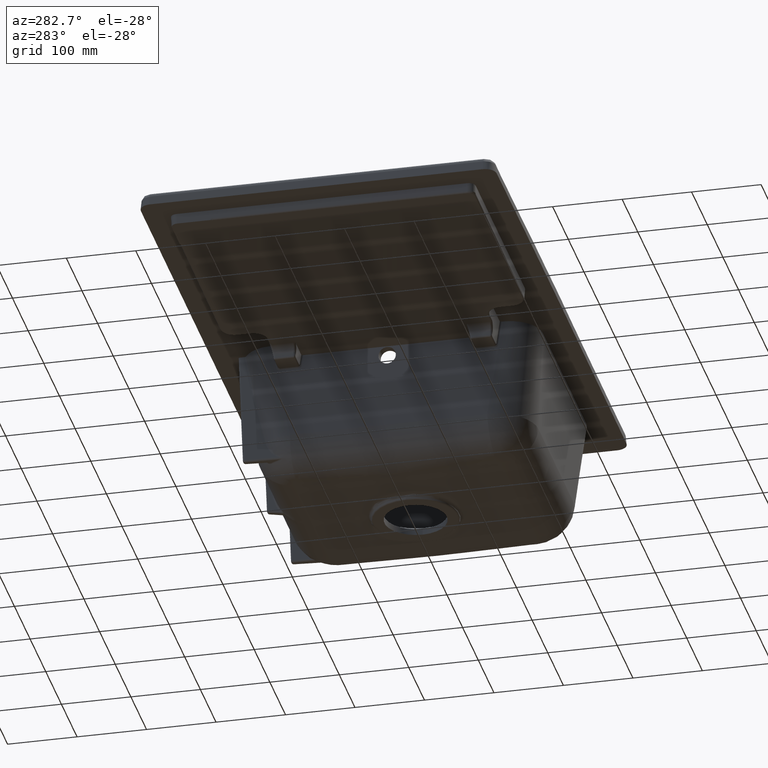
[diagram: clean part render]
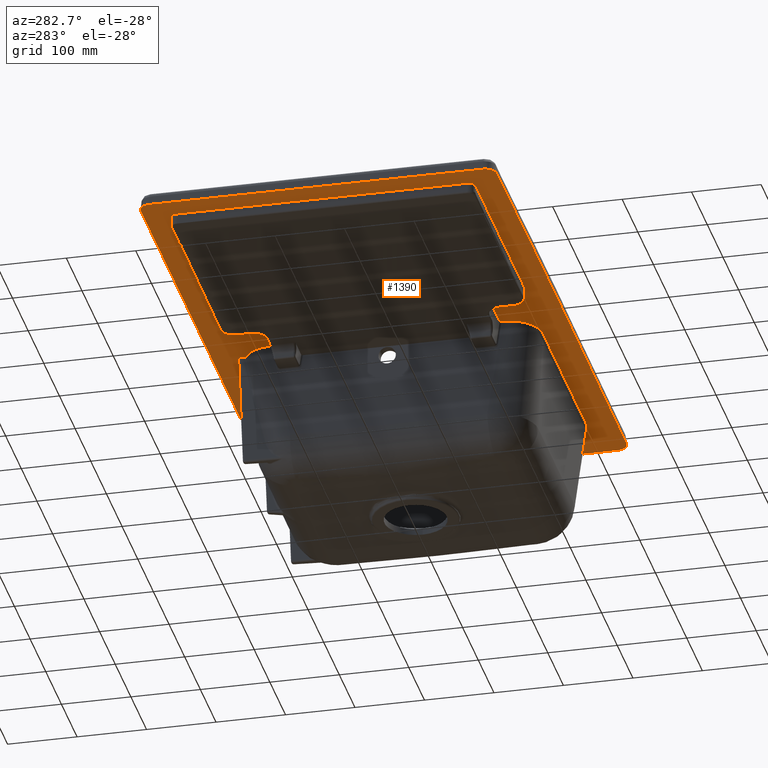
[diagram: same view with one face highlighted and labeled with its STEP entity id]
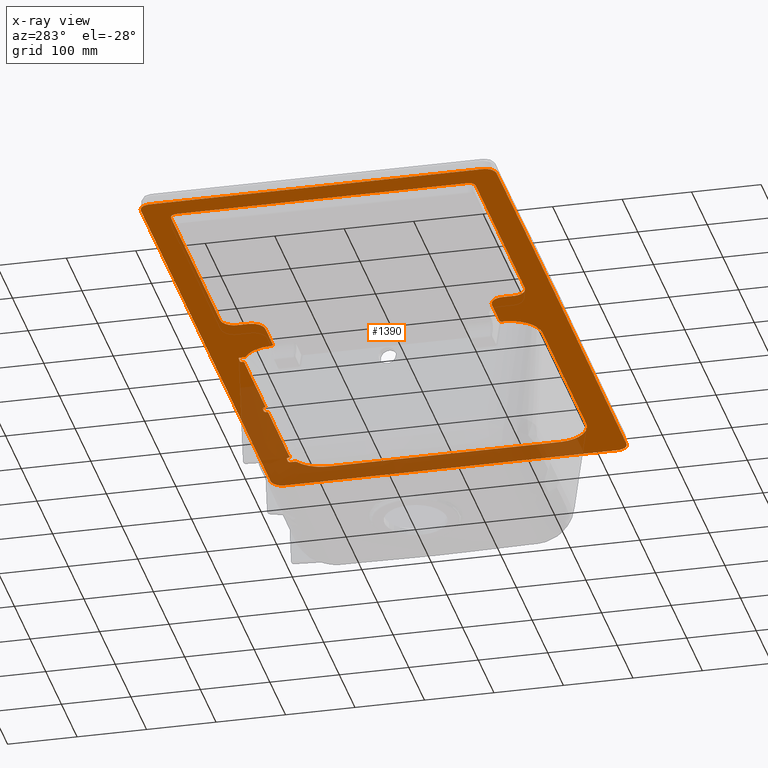
[diagram: x-ray of the same camera — body ghosted, the highlighted face saturated]
A machine part, auxiliary view. The second image highlights one B-rep face of the part: STEP entity #1390.
The next image is the same camera in x-ray: the body ghosted, the highlighted face saturated — about 26% of this face is hidden behind the body in this view.
In plain terms, the highlighted face is a freeform B-spline surface patch.
Its self-contained STEP definition (entity closure, byte-faithful):
#437=B_SPLINE_SURFACE_WITH_KNOTS('',3,3,((#20164,#20165,#20166,#20167),
(#20168,#20169,#20170,#20171),(#20172,#20173,#20174,#20175),(#20176,#20177,
#20178,#20179)),.UNSPECIFIED.,.F.,.F.,.F.,(4,4),(4,4),(0.,1.),(0.,1.),
 .UNSPECIFIED.);
#984=B_SPLINE_CURVE_WITH_KNOTS('',3,(#18174,#18175,#18176,#18177,#18178,
#18179,#18180,#18181,#18182,#18183),.UNSPECIFIED.,.F.,.F.,(4,2,2,2,4),(0.,
0.249999999999998,0.499999999999995,0.749999999999998,1.),.UNSPECIFIED.);
#1020=B_SPLINE_CURVE_WITH_KNOTS('',3,(#18917,#18918,#18919,#18920),
 .UNSPECIFIED.,.F.,.F.,(4,4),(0.,1.),.UNSPECIFIED.);
#1025=B_SPLINE_CURVE_WITH_KNOTS('',3,(#18976,#18977,#18978,#18979),
 .UNSPECIFIED.,.F.,.F.,(4,4),(0.,1.),.UNSPECIFIED.);
#1043=B_SPLINE_CURVE_WITH_KNOTS('',3,(#19394,#19395,#19396,#19397,#19398,
#19399,#19400,#19401,#19402,#19403),.UNSPECIFIED.,.F.,.F.,(4,2,2,2,4),(0.,
0.25,0.5,0.75,1.),.UNSPECIFIED.);
#1046=B_SPLINE_CURVE_WITH_KNOTS('',3,(#19473,#19474,#19475,#19476),
 .UNSPECIFIED.,.F.,.F.,(4,4),(0.,1.),.UNSPECIFIED.);
#1050=B_SPLINE_CURVE_WITH_KNOTS('',3,(#19551,#19552,#19553,#19554),
 .UNSPECIFIED.,.F.,.F.,(4,4),(0.,1.),.UNSPECIFIED.);
#1052=B_SPLINE_CURVE_WITH_KNOTS('',3,(#19590,#19591,#19592,#19593),
 .UNSPECIFIED.,.F.,.F.,(4,4),(0.,1.),.UNSPECIFIED.);
#1054=B_SPLINE_CURVE_WITH_KNOTS('',3,(#19638,#19639,#19640,#19641,#19642,
#19643,#19644,#19645,#19646,#19647),.UNSPECIFIED.,.F.,.F.,(4,2,2,2,4),(0.,
0.25,0.5,0.75,1.),.UNSPECIFIED.);
#1055=B_SPLINE_CURVE_WITH_KNOTS('',3,(#19673,#19674,#19675,#19676,#19677,
#19678,#19679,#19680,#19681,#19682),.UNSPECIFIED.,.F.,.F.,(4,2,2,2,4),(0.,
0.250000000000002,0.500000000000005,0.750000000000002,1.),.UNSPECIFIED.);
#1056=B_SPLINE_CURVE_WITH_KNOTS('',3,(#19704,#19705,#19706,#19707),
 .UNSPECIFIED.,.F.,.F.,(4,4),(0.,1.),.UNSPECIFIED.);
#1057=B_SPLINE_CURVE_WITH_KNOTS('',3,(#19709,#19710,#19711,#19712),
 .UNSPECIFIED.,.F.,.F.,(4,4),(0.,1.),.UNSPECIFIED.);
#1058=B_SPLINE_CURVE_WITH_KNOTS('',3,(#19715,#19716,#19717,#19718,#19719,
#19720),.UNSPECIFIED.,.F.,.F.,(4,2,4),(0.,0.5,1.),.UNSPECIFIED.);
#1059=B_SPLINE_CURVE_WITH_KNOTS('',3,(#19722,#19723,#19724,#19725,#19726,
#19727,#19728,#19729,#19730,#19731,#19732,#19733,#19734,#19735,#19736,#19737),
 .UNSPECIFIED.,.F.,.F.,(4,2,2,2,2,2,2,4),(0.,0.249999999999979,0.499999999999959,
0.624999999999949,0.687499999999951,0.749999999999952,0.874999999999976,
1.),.UNSPECIFIED.);
#1060=B_SPLINE_CURVE_WITH_KNOTS('',3,(#19739,#19740,#19741,#19742),
 .UNSPECIFIED.,.F.,.F.,(4,4),(0.,1.),.UNSPECIFIED.);
#1061=B_SPLINE_CURVE_WITH_KNOTS('',3,(#19744,#19745,#19746,#19747),
 .UNSPECIFIED.,.F.,.F.,(4,4),(0.,1.),.UNSPECIFIED.);
#1062=B_SPLINE_CURVE_WITH_KNOTS('',3,(#19749,#19750,#19751,#19752,#19753,
#19754,#19755,#19756,#19757,#19758),.UNSPECIFIED.,.F.,.F.,(4,2,2,2,4),(0.,
0.125,0.25,0.5,1.),.UNSPECIFIED.);
#1063=B_SPLINE_CURVE_WITH_KNOTS('',3,(#19760,#19761,#19762,#19763,#19764,
#19765),.UNSPECIFIED.,.F.,.F.,(4,2,4),(0.,0.5,1.),.UNSPECIFIED.);
#1064=B_SPLINE_CURVE_WITH_KNOTS('',3,(#19767,#19768,#19769,#19770),
 .UNSPECIFIED.,.F.,.F.,(4,4),(0.,1.),.UNSPECIFIED.);
#1065=B_SPLINE_CURVE_WITH_KNOTS('',3,(#19772,#19773,#19774,#19775,#19776,
#19777),.UNSPECIFIED.,.F.,.F.,(4,2,4),(0.,0.5,1.),.UNSPECIFIED.);
#1066=B_SPLINE_CURVE_WITH_KNOTS('',3,(#19779,#19780,#19781,#19782,#19783,
#19784,#19785,#19786),.UNSPECIFIED.,.F.,.F.,(4,2,2,4),(0.,0.5,0.75,1.),
 .UNSPECIFIED.);
#1067=B_SPLINE_CURVE_WITH_KNOTS('',3,(#19788,#19789,#19790,#19791),
 .UNSPECIFIED.,.F.,.F.,(4,4),(0.,1.),.UNSPECIFIED.);
#1068=B_SPLINE_CURVE_WITH_KNOTS('',3,(#19793,#19794,#19795,#19796),
 .UNSPECIFIED.,.F.,.F.,(4,4),(0.,1.),.UNSPECIFIED.);
#1069=B_SPLINE_CURVE_WITH_KNOTS('',3,(#19798,#19799,#19800,#19801,#19802,
#19803,#19804,#19805,#19806,#19807,#19808,#19809,#19810,#19811,#19812,#19813),
 .UNSPECIFIED.,.F.,.F.,(4,2,2,2,2,2,2,4),(0.,0.124999999999995,0.249999999999991,
0.312499999999983,0.374999999999976,0.499999999999976,0.749999999999988,
1.),.UNSPECIFIED.);
#1070=B_SPLINE_CURVE_WITH_KNOTS('',3,(#19815,#19816,#19817,#19818,#19819,
#19820),.UNSPECIFIED.,.F.,.F.,(4,2,4),(0.,0.5,1.),.UNSPECIFIED.);
#1071=B_SPLINE_CURVE_WITH_KNOTS('',3,(#19822,#19823,#19824,#19825),
 .UNSPECIFIED.,.F.,.F.,(4,4),(0.,1.),.UNSPECIFIED.);
#1072=B_SPLINE_CURVE_WITH_KNOTS('',3,(#19827,#19828,#19829,#19830,#19831,
#19832),.UNSPECIFIED.,.F.,.F.,(4,2,4),(0.,0.5,1.),.UNSPECIFIED.);
#1073=B_SPLINE_CURVE_WITH_KNOTS('',3,(#19834,#19835,#19836,#19837),
 .UNSPECIFIED.,.F.,.F.,(4,4),(0.,1.),.UNSPECIFIED.);
#1074=B_SPLINE_CURVE_WITH_KNOTS('',3,(#19839,#19840,#19841,#19842),
 .UNSPECIFIED.,.F.,.F.,(4,4),(0.,1.),.UNSPECIFIED.);
#1075=B_SPLINE_CURVE_WITH_KNOTS('',3,(#19844,#19845,#19846,#19847,#19848,
#19849,#19850,#19851,#19852,#19853,#19854,#19855,#19856,#19857,#19858,#19859,
#19860,#19861),.UNSPECIFIED.,.F.,.F.,(4,2,2,2,2,2,2,2,4),(0.,0.250000000000003,
0.281250000000003,0.312500000000004,0.375000000000003,0.500000000000002,
0.625000000000002,0.750000000000001,1.),.UNSPECIFIED.);
#1076=B_SPLINE_CURVE_WITH_KNOTS('',3,(#19863,#19864,#19865,#19866),
 .UNSPECIFIED.,.F.,.F.,(4,4),(0.,1.),.UNSPECIFIED.);
#1077=B_SPLINE_CURVE_WITH_KNOTS('',3,(#19868,#19869,#19870,#19871,#19872,
#19873,#19874,#19875),.UNSPECIFIED.,.F.,.F.,(4,2,2,4),(0.,0.25,0.5,1.),
 .UNSPECIFIED.);
#1078=B_SPLINE_CURVE_WITH_KNOTS('',3,(#19877,#19878,#19879,#19880),
 .UNSPECIFIED.,.F.,.F.,(4,4),(0.,1.),.UNSPECIFIED.);
#1079=B_SPLINE_CURVE_WITH_KNOTS('',3,(#19882,#19883,#19884,#19885,#19886,
#19887,#19888,#19889,#19890,#19891,#19892,#19893,#19894,#19895,#19896,#19897,
#19898,#19899),.UNSPECIFIED.,.F.,.F.,(4,2,2,2,2,2,2,2,4),(0.,0.125000000000002,
0.187500000000004,0.250000000000005,0.500000000000003,0.625,0.687499999999999,
0.749999999999998,1.),.UNSPECIFIED.);
#1080=B_SPLINE_CURVE_WITH_KNOTS('',3,(#19901,#19902,#19903,#19904),
 .UNSPECIFIED.,.F.,.F.,(4,4),(0.,1.),.UNSPECIFIED.);
#1081=B_SPLINE_CURVE_WITH_KNOTS('',3,(#19906,#19907,#19908,#19909,#19910,
#19911,#19912,#19913,#19914,#19915,#19916,#19917,#19918,#19919,#19920,#19921,
#19922,#19923,#19924,#19925,#19926,#19927,#19928,#19929),.UNSPECIFIED.,
 .F.,.F.,(4,2,2,2,2,2,2,2,2,2,2,4),(0.,0.250000000000022,0.265625000000022,
0.281250000000023,0.312500000000023,0.375000000000024,0.500000000000025,
0.531250000000024,0.562500000000023,0.62500000000002,0.750000000000012,
1.),.UNSPECIFIED.);
#1082=B_SPLINE_CURVE_WITH_KNOTS('',3,(#19931,#19932,#19933,#19934),
 .UNSPECIFIED.,.F.,.F.,(4,4),(0.,1.),.UNSPECIFIED.);
#1083=B_SPLINE_CURVE_WITH_KNOTS('',3,(#19936,#19937,#19938,#19939,#19940,
#19941,#19942,#19943,#19944,#19945,#19946,#19947,#19948,#19949,#19950,#19951,
#19952,#19953),.UNSPECIFIED.,.F.,.F.,(4,2,2,2,2,2,2,2,4),(0.,0.499999999999942,
0.562499999999937,0.624999999999931,0.749999999999918,0.781249999999918,
0.812499999999918,0.874999999999939,1.),.UNSPECIFIED.);
#1084=B_SPLINE_CURVE_WITH_KNOTS('',3,(#19955,#19956,#19957,#19958),
 .UNSPECIFIED.,.F.,.F.,(4,4),(0.,1.),.UNSPECIFIED.);
#1085=B_SPLINE_CURVE_WITH_KNOTS('',3,(#19960,#19961,#19962,#19963),
 .UNSPECIFIED.,.F.,.F.,(4,4),(0.,1.),.UNSPECIFIED.);
#1086=B_SPLINE_CURVE_WITH_KNOTS('',3,(#19965,#19966,#19967,#19968,#19969,
#19970,#19971,#19972,#19973,#19974,#19975,#19976,#19977,#19978,#19979,#19980,
#19981,#19982,#19983,#19984),.UNSPECIFIED.,.F.,.F.,(4,2,2,2,2,2,2,2,2,4),
(0.,0.250000000000022,0.281250000000009,0.312499999999997,0.374999999999993,
0.499999999999969,0.562499999999968,0.624999999999966,0.749999999999975,
1.),.UNSPECIFIED.);
#1087=B_SPLINE_CURVE_WITH_KNOTS('',3,(#19986,#19987,#19988,#19989),
 .UNSPECIFIED.,.F.,.F.,(4,4),(0.,1.),.UNSPECIFIED.);
#1088=B_SPLINE_CURVE_WITH_KNOTS('',3,(#19991,#19992,#19993,#19994,#19995,
#19996,#19997,#19998,#19999,#20000,#20001,#20002,#20003,#20004,#20005,#20006,
#20007,#20008,#20009,#20010,#20011,#20012),.UNSPECIFIED.,.F.,.F.,(4,2,2,
2,2,2,2,2,2,2,4),(0.,0.499999999999999,0.531249999999998,0.562499999999997,
0.624999999999993,0.749999999999983,0.765624999999986,0.781249999999989,
0.812499999999991,0.874999999999994,1.),.UNSPECIFIED.);
#1089=B_SPLINE_CURVE_WITH_KNOTS('',3,(#20014,#20015,#20016,#20017),
 .UNSPECIFIED.,.F.,.F.,(4,4),(0.,1.),.UNSPECIFIED.);
#1090=B_SPLINE_CURVE_WITH_KNOTS('',3,(#20019,#20020,#20021,#20022,#20023,
#20024,#20025,#20026,#20027,#20028,#20029,#20030,#20031,#20032,#20033,#20034,
#20035,#20036),.UNSPECIFIED.,.F.,.F.,(4,2,2,2,2,2,2,2,4),(0.,0.124999999999996,
0.187499999999996,0.249999999999996,0.499999999999995,0.624999999999993,
0.687499999999994,0.749999999999995,1.),.UNSPECIFIED.);
#1091=B_SPLINE_CURVE_WITH_KNOTS('',3,(#20038,#20039,#20040,#20041),
 .UNSPECIFIED.,.F.,.F.,(4,4),(0.,1.),.UNSPECIFIED.);
#1092=B_SPLINE_CURVE_WITH_KNOTS('',3,(#20043,#20044,#20045,#20046,#20047,
#20048,#20049,#20050),.UNSPECIFIED.,.F.,.F.,(4,2,2,4),(0.,0.25,0.5,1.),
 .UNSPECIFIED.);
#1093=B_SPLINE_CURVE_WITH_KNOTS('',3,(#20052,#20053,#20054,#20055),
 .UNSPECIFIED.,.F.,.F.,(4,4),(0.,1.),.UNSPECIFIED.);
#1094=B_SPLINE_CURVE_WITH_KNOTS('',3,(#20057,#20058,#20059,#20060,#20061,
#20062,#20063,#20064,#20065,#20066,#20067,#20068,#20069,#20070,#20071,#20072,
#20073,#20074,#20075,#20076,#20077,#20078,#20079,#20080,#20081,#20082),
 .UNSPECIFIED.,.F.,.F.,(4,2,2,2,2,2,2,2,2,2,2,2,4),(0.,0.124999999999998,
0.187499999999997,0.218749999999997,0.234374999999997,0.249999999999997,
0.499999999999996,0.624999999999997,0.687499999999997,0.718749999999996,
0.734374999999996,0.749999999999996,1.),.UNSPECIFIED.);
#1095=B_SPLINE_CURVE_WITH_KNOTS('',3,(#20084,#20085,#20086,#20087),
 .UNSPECIFIED.,.F.,.F.,(4,4),(0.,1.),.UNSPECIFIED.);
#1096=B_SPLINE_CURVE_WITH_KNOTS('',3,(#20089,#20090,#20091,#20092,#20093,
#20094,#20095,#20096,#20097,#20098,#20099,#20100,#20101,#20102,#20103,#20104,
#20105,#20106,#20107,#20108,#20109,#20110,#20111,#20112,#20113,#20114),
 .UNSPECIFIED.,.F.,.F.,(4,2,2,2,2,2,2,2,2,2,2,2,4),(0.,0.125000000000001,
0.187500000000002,0.218750000000002,0.234375000000002,0.250000000000003,
0.500000000000005,0.625000000000006,0.687500000000006,0.718750000000006,
0.734375000000006,0.750000000000006,1.),.UNSPECIFIED.);
#1097=B_SPLINE_CURVE_WITH_KNOTS('',3,(#20116,#20117,#20118,#20119),
 .UNSPECIFIED.,.F.,.F.,(4,4),(0.,1.),.UNSPECIFIED.);
#1098=B_SPLINE_CURVE_WITH_KNOTS('',3,(#20121,#20122,#20123,#20124,#20125,
#20126,#20127,#20128,#20129,#20130,#20131,#20132,#20133,#20134,#20135,#20136,
#20137,#20138,#20139,#20140),.UNSPECIFIED.,.F.,.F.,(4,2,2,2,2,2,2,2,2,4),
(0.,0.250000000000002,0.500000000000003,0.625000000000004,0.687500000000004,
0.750000000000004,0.812500000000005,0.843750000000004,0.875000000000003,
1.),.UNSPECIFIED.);
#1099=B_SPLINE_CURVE_WITH_KNOTS('',3,(#20142,#20143,#20144,#20145,#20146,
#20147,#20148,#20149,#20150,#20151),.UNSPECIFIED.,.F.,.F.,(4,2,2,2,4),(0.,
0.124999999999998,0.249999999999997,0.499999999999993,1.),.UNSPECIFIED.);
#1100=B_SPLINE_CURVE_WITH_KNOTS('',3,(#20153,#20154,#20155,#20156),
 .UNSPECIFIED.,.F.,.F.,(4,4),(0.,1.),.UNSPECIFIED.);
#1101=B_SPLINE_CURVE_WITH_KNOTS('',3,(#20158,#20159,#20160,#20161,#20162,
#20163),.UNSPECIFIED.,.F.,.F.,(4,2,4),(0.,0.5,1.),.UNSPECIFIED.);
#1390=ADVANCED_FACE('',(#1705,#1706),#437,.T.);
#1705=FACE_BOUND('',#1871,.T.);
#1706=FACE_BOUND('',#1872,.T.);
#1871=EDGE_LOOP('',(#2705,#2706,#2707,#2708,#2709,#2710,#2711,#2712,#2713,
#2714,#2715,#2716,#2717,#2718,#2719,#2720,#2721,#2722,#2723,#2724,#2725,
#2726,#2727,#2728,#2729,#2730,#2731,#2732,#2733,#2734,#2735,#2736,#2737,
#2738,#2739,#2740,#2741,#2742,#2743,#2744,#2745,#2746,#2747,#2748,#2749));
#1872=EDGE_LOOP('',(#2750,#2751,#2752,#2753,#2754,#2755,#2756,#2757,#2758,
#2759));
#2705=ORIENTED_EDGE('',*,*,#4212,.F.);
#2706=ORIENTED_EDGE('',*,*,#4213,.F.);
#2707=ORIENTED_EDGE('',*,*,#4214,.F.);
#2708=ORIENTED_EDGE('',*,*,#4215,.F.);
#2709=ORIENTED_EDGE('',*,*,#4216,.F.);
#2710=ORIENTED_EDGE('',*,*,#4217,.F.);
#2711=ORIENTED_EDGE('',*,*,#4218,.F.);
#2712=ORIENTED_EDGE('',*,*,#4219,.F.);
#2713=ORIENTED_EDGE('',*,*,#4220,.F.);
#2714=ORIENTED_EDGE('',*,*,#4221,.F.);
#2715=ORIENTED_EDGE('',*,*,#4222,.F.);
#2716=ORIENTED_EDGE('',*,*,#4223,.F.);
#2717=ORIENTED_EDGE('',*,*,#4224,.F.);
#2718=ORIENTED_EDGE('',*,*,#4225,.F.);
#2719=ORIENTED_EDGE('',*,*,#4226,.F.);
#2720=ORIENTED_EDGE('',*,*,#4227,.F.);
#2721=ORIENTED_EDGE('',*,*,#4228,.F.);
#2722=ORIENTED_EDGE('',*,*,#4229,.F.);
#2723=ORIENTED_EDGE('',*,*,#4230,.F.);
#2724=ORIENTED_EDGE('',*,*,#4231,.F.);
#2725=ORIENTED_EDGE('',*,*,#4232,.F.);
#2726=ORIENTED_EDGE('',*,*,#4233,.F.);
#2727=ORIENTED_EDGE('',*,*,#4234,.F.);
#2728=ORIENTED_EDGE('',*,*,#4235,.F.);
#2729=ORIENTED_EDGE('',*,*,#4236,.F.);
#2730=ORIENTED_EDGE('',*,*,#4237,.F.);
#2731=ORIENTED_EDGE('',*,*,#4238,.F.);
#2732=ORIENTED_EDGE('',*,*,#4239,.F.);
#2733=ORIENTED_EDGE('',*,*,#4240,.F.);
#2734=ORIENTED_EDGE('',*,*,#4241,.F.);
#2735=ORIENTED_EDGE('',*,*,#4242,.F.);
#2736=ORIENTED_EDGE('',*,*,#4243,.F.);
#2737=ORIENTED_EDGE('',*,*,#4244,.F.);
#2738=ORIENTED_EDGE('',*,*,#4245,.F.);
#2739=ORIENTED_EDGE('',*,*,#4246,.F.);
#2740=ORIENTED_EDGE('',*,*,#4247,.F.);
#2741=ORIENTED_EDGE('',*,*,#4248,.F.);
#2742=ORIENTED_EDGE('',*,*,#4249,.F.);
#2743=ORIENTED_EDGE('',*,*,#4250,.F.);
#2744=ORIENTED_EDGE('',*,*,#4251,.F.);
#2745=ORIENTED_EDGE('',*,*,#4252,.F.);
#2746=ORIENTED_EDGE('',*,*,#4253,.F.);
#2747=ORIENTED_EDGE('',*,*,#4254,.F.);
#2748=ORIENTED_EDGE('',*,*,#4255,.F.);
#2749=ORIENTED_EDGE('',*,*,#4256,.F.);
#2750=ORIENTED_EDGE('',*,*,#4198,.T.);
#2751=ORIENTED_EDGE('',*,*,#4185,.T.);
#2752=ORIENTED_EDGE('',*,*,#4155,.T.);
#2753=ORIENTED_EDGE('',*,*,#4088,.T.);
#2754=ORIENTED_EDGE('',*,*,#4166,.T.);
#2755=ORIENTED_EDGE('',*,*,#4192,.T.);
#2756=ORIENTED_EDGE('',*,*,#4203,.T.);
#2757=ORIENTED_EDGE('',*,*,#4210,.T.);
#2758=ORIENTED_EDGE('',*,*,#4211,.T.);
#2759=ORIENTED_EDGE('',*,*,#4207,.T.);
#3596=VERTEX_POINT('',#18173);
#3597=VERTEX_POINT('',#18184);
#3626=VERTEX_POINT('',#18921);
#3631=VERTEX_POINT('',#18975);
#3639=VERTEX_POINT('',#19404);
#3642=VERTEX_POINT('',#19472);
#3645=VERTEX_POINT('',#19555);
#3647=VERTEX_POINT('',#19589);
#3649=VERTEX_POINT('',#19648);
#3650=VERTEX_POINT('',#19672);
#3651=VERTEX_POINT('',#19713);
#3652=VERTEX_POINT('',#19714);
#3653=VERTEX_POINT('',#19721);
#3654=VERTEX_POINT('',#19738);
#3655=VERTEX_POINT('',#19743);
#3656=VERTEX_POINT('',#19748);
#3657=VERTEX_POINT('',#19759);
#3658=VERTEX_POINT('',#19766);
#3659=VERTEX_POINT('',#19771);
#3660=VERTEX_POINT('',#19778);
#3661=VERTEX_POINT('',#19787);
#3662=VERTEX_POINT('',#19792);
#3663=VERTEX_POINT('',#19797);
#3664=VERTEX_POINT('',#19814);
#3665=VERTEX_POINT('',#19821);
#3666=VERTEX_POINT('',#19826);
#3667=VERTEX_POINT('',#19833);
#3668=VERTEX_POINT('',#19838);
#3669=VERTEX_POINT('',#19843);
#3670=VERTEX_POINT('',#19862);
#3671=VERTEX_POINT('',#19867);
#3672=VERTEX_POINT('',#19876);
#3673=VERTEX_POINT('',#19881);
#3674=VERTEX_POINT('',#19900);
#3675=VERTEX_POINT('',#19905);
#3676=VERTEX_POINT('',#19930);
#3677=VERTEX_POINT('',#19935);
#3678=VERTEX_POINT('',#19954);
#3679=VERTEX_POINT('',#19959);
#3680=VERTEX_POINT('',#19964);
#3681=VERTEX_POINT('',#19985);
#3682=VERTEX_POINT('',#19990);
#3683=VERTEX_POINT('',#20013);
#3684=VERTEX_POINT('',#20018);
#3685=VERTEX_POINT('',#20037);
#3686=VERTEX_POINT('',#20042);
#3687=VERTEX_POINT('',#20051);
#3688=VERTEX_POINT('',#20056);
#3689=VERTEX_POINT('',#20083);
#3690=VERTEX_POINT('',#20088);
#3691=VERTEX_POINT('',#20115);
#3692=VERTEX_POINT('',#20120);
#3693=VERTEX_POINT('',#20141);
#3694=VERTEX_POINT('',#20152);
#3695=VERTEX_POINT('',#20157);
#4088=EDGE_CURVE('',#3597,#3596,#984,.T.);
#4155=EDGE_CURVE('',#3626,#3597,#1020,.T.);
#4166=EDGE_CURVE('',#3596,#3631,#1025,.T.);
#4185=EDGE_CURVE('',#3639,#3626,#1043,.T.);
#4192=EDGE_CURVE('',#3631,#3642,#1046,.T.);
#4198=EDGE_CURVE('',#3645,#3639,#1050,.T.);
#4203=EDGE_CURVE('',#3642,#3647,#1052,.T.);
#4207=EDGE_CURVE('',#3649,#3645,#1054,.T.);
#4210=EDGE_CURVE('',#3647,#3650,#1055,.T.);
#4211=EDGE_CURVE('',#3650,#3649,#1056,.T.);
#4212=EDGE_CURVE('',#3651,#3652,#1057,.T.);
#4213=EDGE_CURVE('',#3653,#3651,#1058,.T.);
#4214=EDGE_CURVE('',#3654,#3653,#1059,.T.);
#4215=EDGE_CURVE('',#3655,#3654,#1060,.T.);
#4216=EDGE_CURVE('',#3656,#3655,#1061,.T.);
#4217=EDGE_CURVE('',#3657,#3656,#1062,.T.);
#4218=EDGE_CURVE('',#3658,#3657,#1063,.T.);
#4219=EDGE_CURVE('',#3659,#3658,#1064,.T.);
#4220=EDGE_CURVE('',#3660,#3659,#1065,.T.);
#4221=EDGE_CURVE('',#3661,#3660,#1066,.T.);
#4222=EDGE_CURVE('',#3662,#3661,#1067,.T.);
#4223=EDGE_CURVE('',#3663,#3662,#1068,.T.);
#4224=EDGE_CURVE('',#3664,#3663,#1069,.T.);
#4225=EDGE_CURVE('',#3665,#3664,#1070,.T.);
#4226=EDGE_CURVE('',#3666,#3665,#1071,.T.);
#4227=EDGE_CURVE('',#3667,#3666,#1072,.T.);
#4228=EDGE_CURVE('',#3668,#3667,#1073,.T.);
#4229=EDGE_CURVE('',#3669,#3668,#1074,.T.);
#4230=EDGE_CURVE('',#3670,#3669,#1075,.T.);
#4231=EDGE_CURVE('',#3671,#3670,#1076,.T.);
#4232=EDGE_CURVE('',#3672,#3671,#1077,.T.);
#4233=EDGE_CURVE('',#3673,#3672,#1078,.T.);
#4234=EDGE_CURVE('',#3674,#3673,#1079,.T.);
#4235=EDGE_CURVE('',#3675,#3674,#1080,.T.);
#4236=EDGE_CURVE('',#3676,#3675,#1081,.T.);
#4237=EDGE_CURVE('',#3677,#3676,#1082,.T.);
#4238=EDGE_CURVE('',#3678,#3677,#1083,.T.);
#4239=EDGE_CURVE('',#3679,#3678,#1084,.T.);
#4240=EDGE_CURVE('',#3680,#3679,#1085,.T.);
#4241=EDGE_CURVE('',#3681,#3680,#1086,.T.);
#4242=EDGE_CURVE('',#3682,#3681,#1087,.T.);
#4243=EDGE_CURVE('',#3683,#3682,#1088,.T.);
#4244=EDGE_CURVE('',#3684,#3683,#1089,.T.);
#4245=EDGE_CURVE('',#3685,#3684,#1090,.T.);
#4246=EDGE_CURVE('',#3686,#3685,#1091,.T.);
#4247=EDGE_CURVE('',#3687,#3686,#1092,.T.);
#4248=EDGE_CURVE('',#3688,#3687,#1093,.T.);
#4249=EDGE_CURVE('',#3689,#3688,#1094,.T.);
#4250=EDGE_CURVE('',#3690,#3689,#1095,.T.);
#4251=EDGE_CURVE('',#3691,#3690,#1096,.T.);
#4252=EDGE_CURVE('',#3692,#3691,#1097,.T.);
#4253=EDGE_CURVE('',#3693,#3692,#1098,.T.);
#4254=EDGE_CURVE('',#3694,#3693,#1099,.T.);
#4255=EDGE_CURVE('',#3695,#3694,#1100,.T.);
#4256=EDGE_CURVE('',#3652,#3695,#1101,.T.);
#18173=CARTESIAN_POINT('',(210.333117637811,-256.094504315289,191.107248229318));
#18174=CARTESIAN_POINT('',(226.62081834591,-239.713695445101,191.107001951484));
#18175=CARTESIAN_POINT('',(226.620818346044,-241.63863284522,191.107004297164));
#18176=CARTESIAN_POINT('',(226.162886013327,-243.900983201255,191.107033478551));
#18177=CARTESIAN_POINT('',(224.516942426883,-247.957345464692,191.107135333473));
#18178=CARTESIAN_POINT('',(223.336758676623,-249.742709581012,191.10720750039));
#18179=CARTESIAN_POINT('',(220.269014686165,-252.810435687446,191.107393204605));
#18180=CARTESIAN_POINT('',(218.488477206946,-253.988166408871,191.107500239902));
#18181=CARTESIAN_POINT('',(214.426394889158,-255.639039534871,191.107740153117));
#18182=CARTESIAN_POINT('',(212.172182867034,-256.094504312728,191.107871101263));
#18183=CARTESIAN_POINT('',(210.333117678977,-256.0945043123,191.107975235896));
#18184=CARTESIAN_POINT('',(226.620810104889,-239.713695445393,191.106761623388));
#18917=CARTESIAN_POINT('',(226.6208177312,239.713695444316,191.106117833566));
#18918=CARTESIAN_POINT('',(226.620818124318,79.9045651502376,191.10666080691));
#18919=CARTESIAN_POINT('',(226.620818528348,-79.9045651476627,191.106807212115));
#18920=CARTESIAN_POINT('',(226.620818931058,-239.713695445095,191.10700195145));
#18921=CARTESIAN_POINT('',(226.620825201358,239.713695444998,191.10631949798));
#18975=CARTESIAN_POINT('',(-204.452603545202,-257.051391927014,191.117371862439));
#18976=CARTESIAN_POINT('',(210.333117678977,-256.0945043123,191.107975235896));
#18977=CARTESIAN_POINT('',(72.0785128939104,-256.732638985405,191.115806344173));
#18978=CARTESIAN_POINT('',(-66.1833941387445,-257.051601548428,191.117037395094));
#18979=CARTESIAN_POINT('',(-204.452603524913,-257.051391964304,191.11552135975));
#19394=CARTESIAN_POINT('',(210.312233998536,256.094504316495,191.106122059681));
#19395=CARTESIAN_POINT('',(212.17121774909,256.094504316465,191.106115241261));
#19396=CARTESIAN_POINT('',(214.4347562287,255.6336664168,191.106108917566));
#19397=CARTESIAN_POINT('',(218.477083417674,253.993535721275,191.10610029534));
#19398=CARTESIAN_POINT('',(220.268883617175,252.81067149109,191.106097987155));
#19399=CARTESIAN_POINT('',(223.336850451879,249.742434576313,191.10609715191));
#19400=CARTESIAN_POINT('',(224.5161369571,247.960103709027,191.106098629988));
#19401=CARTESIAN_POINT('',(226.163694851136,243.900638589525,191.106105715956));
#19402=CARTESIAN_POINT('',(226.620818316315,241.637985479252,191.106111295525));
#19403=CARTESIAN_POINT('',(226.620818316347,239.713695444315,191.106117833563));
#19404=CARTESIAN_POINT('',(210.312233999268,256.094504554608,191.106321641013));
#19472=CARTESIAN_POINT('',(-391.885885180357,-256.855668201769,191.111477679114));
#19473=CARTESIAN_POINT('',(-204.452603524913,-257.051391964304,191.11552135975));
#19474=CARTESIAN_POINT('',(-266.914938711185,-257.051394346131,191.114836501294));
#19475=CARTESIAN_POINT('',(-329.392699264878,-256.98615309113,191.113594333909));
#19476=CARTESIAN_POINT('',(-391.885885195987,-256.855668195806,191.112158496724));
#19551=CARTESIAN_POINT('',(-618.947405999242,256.09450336812,191.106211056031));
#19552=CARTESIAN_POINT('',(-342.527526019372,256.094504007319,191.106886799252));
#19553=CARTESIAN_POINT('',(-66.1076460277853,256.094504642424,191.1071359184));
#19554=CARTESIAN_POINT('',(210.312233998536,256.094505265374,191.106122059677));
#19555=CARTESIAN_POINT('',(-618.947405999621,256.094504080418,191.106366139132));
#19589=CARTESIAN_POINT('',(-618.968645460172,-256.094503093846,191.10662726536));
#19590=CARTESIAN_POINT('',(-391.885885195987,-256.855668195806,191.112158496724));
#19591=CARTESIAN_POINT('',(-467.587538436742,-256.697604206079,191.110419183117));
#19592=CARTESIAN_POINT('',(-543.281791853054,-256.443882507516,191.108397633313));
#19593=CARTESIAN_POINT('',(-618.968645462516,-256.09450309396,191.106733877723));
#19638=CARTESIAN_POINT('',(-635.255990317321,239.785919999067,191.106224231417));
#19639=CARTESIAN_POINT('',(-635.255990317301,241.644903155331,191.106218386299));
#19640=CARTESIAN_POINT('',(-634.795152814433,243.908440907729,191.106212638658));
#19641=CARTESIAN_POINT('',(-633.155021325286,247.950770739692,191.106204114889));
#19642=CARTESIAN_POINT('',(-631.97215785557,249.74256906671,191.106201338574));
#19643=CARTESIAN_POINT('',(-628.903920214254,252.810537002566,191.106198719336));
#19644=CARTESIAN_POINT('',(-627.121350291178,253.990029064726,191.106198947639));
#19645=CARTESIAN_POINT('',(-623.062163123974,255.637174744694,191.106202856856));
#19646=CARTESIAN_POINT('',(-620.805798132896,256.09450431698,191.106206512954));
#19647=CARTESIAN_POINT('',(-618.947405999242,256.094504316999,191.106211056028));
#19648=CARTESIAN_POINT('',(-635.255989753767,239.785919999534,191.106372562423));
#19672=CARTESIAN_POINT('',(-635.255988940195,-239.78591999993,191.106460622849));
#19673=CARTESIAN_POINT('',(-618.968645462516,-256.09450309396,191.106733877723));
#19674=CARTESIAN_POINT('',(-620.808233243965,-256.094503093913,191.106693430687));
#19675=CARTESIAN_POINT('',(-623.072392206201,-255.632744183688,191.106644410046));
#19676=CARTESIAN_POINT('',(-627.110088101291,-253.994456194713,191.106558550582));
#19677=CARTESIAN_POINT('',(-628.904033330433,-252.81070427249,191.106521213801));
#19678=CARTESIAN_POINT('',(-631.972055423168,-249.742412482356,191.106458889598));
#19679=CARTESIAN_POINT('',(-633.151389214637,-247.960048514391,191.106435809374));
#19680=CARTESIAN_POINT('',(-634.798784730285,-243.900802158713,191.106405476067));
#19681=CARTESIAN_POINT('',(-635.255989091141,-241.644392624408,191.106398431314));
#19682=CARTESIAN_POINT('',(-635.255989091188,-239.78591999986,191.10640059323));
#19704=CARTESIAN_POINT('',(-635.255988482138,-239.785919999864,191.106400593243));
#19705=CARTESIAN_POINT('',(-635.25598889542,-79.9286399978663,191.106586551343));
#19706=CARTESIAN_POINT('',(-635.255989307454,79.9286400036963,191.106726863507));
#19707=CARTESIAN_POINT('',(-635.255989701824,239.785919999068,191.106224231419));
#19709=CARTESIAN_POINT('',(149.823554562694,219.24706021247,191.106597262078));
#19710=CARTESIAN_POINT('',(152.361174885026,219.247059788654,191.106585125553));
#19711=CARTESIAN_POINT('',(154.898795207359,219.247059364837,191.106572989028));
#19712=CARTESIAN_POINT('',(157.436415529691,219.24705894102,191.106560852503));
#19713=CARTESIAN_POINT('',(149.823554562652,219.247060212558,191.106597265094));
#19714=CARTESIAN_POINT('',(157.436415529728,219.247058941105,191.106560855523));
#19715=CARTESIAN_POINT('',(146.9563871182,216.500608733547,191.106630999834));
#19716=CARTESIAN_POINT('',(146.991004194419,217.296439469617,191.1066113837));
#19717=CARTESIAN_POINT('',(147.309513845671,217.942311669865,191.106629335914));
#19718=CARTESIAN_POINT('',(148.365837024611,218.955233149007,191.106595512673));
#19719=CARTESIAN_POINT('',(149.092982059069,219.247060333064,191.106600715275));
#19720=CARTESIAN_POINT('',(149.823554562624,219.247060212652,191.106597267104));
#19721=CARTESIAN_POINT('',(146.956379423126,216.500609155774,191.106631310899));
#19722=CARTESIAN_POINT('',(143.728644091375,213.764693584601,191.106677437287));
#19723=CARTESIAN_POINT('',(144.138085930728,213.7122732686,191.106985293567));
#19724=CARTESIAN_POINT('',(144.54377182142,213.752500333301,191.106652554782));
#19725=CARTESIAN_POINT('',(145.266923901082,213.967712577382,191.106670898439));
#19726=CARTESIAN_POINT('',(145.654238476938,214.177773488266,191.106652492237));
#19727=CARTESIAN_POINT('',(146.086434667964,214.545137804232,191.106651962046));
#19728=CARTESIAN_POINT('',(146.242632678192,214.709961308205,191.106646721686));
#19729=CARTESIAN_POINT('',(146.408077711483,214.923435552998,191.10664694827));
#19730=CARTESIAN_POINT('',(146.462827421233,215.000980051114,191.106657414733));
#19731=CARTESIAN_POINT('',(146.568324922521,215.16893466613,191.106655232044));
#19732=CARTESIAN_POINT('',(146.633296931715,215.288675959966,191.106640724329));
#19733=CARTESIAN_POINT('',(146.728842043486,215.484318417377,191.10664324147));
#19734=CARTESIAN_POINT('',(146.800997453421,215.639809279809,191.106641915584));
#19735=CARTESIAN_POINT('',(146.940226703866,216.190644271072,191.106630598187));
#19736=CARTESIAN_POINT('',(146.951319538859,216.384112414249,191.106632354166));
#19737=CARTESIAN_POINT('',(146.956386867512,216.50060883779,191.106631450935));
#19738=CARTESIAN_POINT('',(143.728688574077,213.765035322031,191.106669240769));
#19739=CARTESIAN_POINT('',(137.633895420067,214.152916984326,191.106694250716));
#19740=CARTESIAN_POINT('',(139.75960657668,214.152916099846,191.106684141067));
#19741=CARTESIAN_POINT('',(141.803693850544,214.011298677814,191.106648595843));
#19742=CARTESIAN_POINT('',(143.728645363037,213.764691923702,191.106665013917));
#19743=CARTESIAN_POINT('',(137.633895322672,214.152916922889,191.106693717273));
#19744=CARTESIAN_POINT('',(9.50784991367606,214.152958151033,191.107164788322));
#19745=CARTESIAN_POINT('',(52.2165316679816,214.152944389905,191.107007497918));
#19746=CARTESIAN_POINT('',(94.9252134222872,214.152930628778,191.106850207513));
#19747=CARTESIAN_POINT('',(137.633895176593,214.152916867651,191.106692917108));
#19748=CARTESIAN_POINT('',(9.50724285610533,214.152958457159,191.107167114901));
#19749=CARTESIAN_POINT('',(6.65759496477484,216.703279855967,191.107127325822));
#19750=CARTESIAN_POINT('',(6.67701523080311,216.533979153463,191.107016382889));
#19751=CARTESIAN_POINT('',(6.70686177147926,216.377300780886,191.107142259677));
#19752=CARTESIAN_POINT('',(6.82486403080413,215.992667810385,191.107156223154));
#19753=CARTESIAN_POINT('',(6.87376707339291,215.875079139873,191.107146741136));
#19754=CARTESIAN_POINT('',(7.13840211139948,215.363873558828,191.107170994154));
#19755=CARTESIAN_POINT('',(7.32811458446916,215.125182680582,191.107156358935));
#19756=CARTESIAN_POINT('',(8.1370654505507,214.400810491314,191.10717715713));
#19757=CARTESIAN_POINT('',(8.82109926598905,214.152958608699,191.107169201565));
#19758=CARTESIAN_POINT('',(9.50785114046251,214.152958376872,191.107167369684));
#19759=CARTESIAN_POINT('',(6.65771858739491,216.703295897913,191.107138887596));
#19760=CARTESIAN_POINT('',(3.80643799281463,219.247078385544,191.107117670826));
#19761=CARTESIAN_POINT('',(4.50594561109844,219.24707832558,191.107115953679));
#19762=CARTESIAN_POINT('',(5.20279311731089,218.98046473915,191.107068464903));
#19763=CARTESIAN_POINT('',(6.2451973577506,218.04394950421,191.107167875923));
#19764=CARTESIAN_POINT('',(6.57351971196304,217.436120544441,191.10709427255));
#19765=CARTESIAN_POINT('',(6.65759304798922,216.703286698687,191.107135134732));
#19766=CARTESIAN_POINT('',(3.80643799277762,219.247078385465,191.107117669057));
#19767=CARTESIAN_POINT('',(-3.80643824743463,219.247079023297,191.107135933672));
#19768=CARTESIAN_POINT('',(-1.26881283403876,219.247078810661,191.107129844583));
#19769=CARTESIAN_POINT('',(1.2688125793571,219.247078598026,191.107123755493));
#19770=CARTESIAN_POINT('',(3.80643799275296,219.24707838539,191.107117666403));
#19771=CARTESIAN_POINT('',(-3.80704874774167,219.247078898375,191.107135938414));
#19772=CARTESIAN_POINT('',(-6.65759340566454,216.70328870063,191.107167858931));
#19773=CARTESIAN_POINT('',(-6.57331144969813,217.437938921229,191.107126066343));
#19774=CARTESIAN_POINT('',(-6.24385847915903,218.045671177719,191.107197959674));
#19775=CARTESIAN_POINT('',(-5.20178253336178,218.980855335632,191.10709375348));
#19776=CARTESIAN_POINT('',(-4.50545960258233,219.247079080683,191.107137576853));
#19777=CARTESIAN_POINT('',(-3.80643824749447,219.247079023456,191.107135938084));
#19778=CARTESIAN_POINT('',(-6.65771845889588,216.703297952221,191.107173118285));
#19779=CARTESIAN_POINT('',(-9.50785152085052,214.152962571554,191.107215315116));
#19780=CARTESIAN_POINT('',(-8.82031216320332,214.152962500774,191.107213681459));
#19781=CARTESIAN_POINT('',(-8.13593558192933,214.401391869596,191.107218140424));
#19782=CARTESIAN_POINT('',(-7.32724505039872,215.126182461334,191.107192918341));
#19783=CARTESIAN_POINT('',(-7.13763768889585,215.364950013002,191.107206668034));
#19784=CARTESIAN_POINT('',(-6.78503620607934,216.046892740979,191.107172135281));
#19785=CARTESIAN_POINT('',(-6.69616041515821,216.367117775169,191.107162321517));
#19786=CARTESIAN_POINT('',(-6.65759548263229,216.703282773489,191.107174868307));
#19787=CARTESIAN_POINT('',(-9.5078510663259,214.1529625033,191.107214924951));
#19788=CARTESIAN_POINT('',(-137.63402253049,214.152978652725,191.107399123739));
#19789=CARTESIAN_POINT('',(-94.9252984534769,214.152973223786,191.107337070677));
#19790=CARTESIAN_POINT('',(-52.2165743764641,214.152967794846,191.107275017616));
#19791=CARTESIAN_POINT('',(-9.50785029945128,214.152962365907,191.107212964555));
#19792=CARTESIAN_POINT('',(-137.634022653579,214.152978699261,191.107399797924));
#19793=CARTESIAN_POINT('',(-143.72864478944,213.764773382796,191.107405734167));
#19794=CARTESIAN_POINT('',(-141.803531313677,214.011394207479,191.107375855248));
#19795=CARTESIAN_POINT('',(-139.759494749784,214.152978852948,191.107401412303));
#19796=CARTESIAN_POINT('',(-137.634022735632,214.15297875103,191.10740024738));
#19797=CARTESIAN_POINT('',(-143.728687175669,213.76510751102,191.107410279365));
#19798=CARTESIAN_POINT('',(-146.956377791102,216.50066273157,191.107370213223));
#19799=CARTESIAN_POINT('',(-146.951312405639,216.384237503943,191.107371923654));
#19800=CARTESIAN_POINT('',(-146.94025331359,216.190475899128,191.107371466966));
#19801=CARTESIAN_POINT('',(-146.800480200435,215.638265650789,191.107386088691));
#19802=CARTESIAN_POINT('',(-146.728397140857,215.483350552777,191.107388111361));
#19803=CARTESIAN_POINT('',(-146.632606070756,215.287439777346,191.107386487599));
#19804=CARTESIAN_POINT('',(-146.567518076441,215.167636429925,191.107401544567));
#19805=CARTESIAN_POINT('',(-146.461800441671,214.999552333596,191.107404375578));
#19806=CARTESIAN_POINT('',(-146.406935168671,214.921951630122,191.107394144141));
#19807=CARTESIAN_POINT('',(-146.241135742517,214.708333334543,191.107394557144));
#19808=CARTESIAN_POINT('',(-146.085324139159,214.544171638261,191.107400136513));
#19809=CARTESIAN_POINT('',(-145.653450863947,214.177420023048,191.107400997939));
#19810=CARTESIAN_POINT('',(-145.265637317246,213.967213714417,191.107418842399));
#19811=CARTESIAN_POINT('',(-144.542233561369,213.752330327569,191.107398106073));
#19812=CARTESIAN_POINT('',(-144.137376871843,213.71244685327,191.107728315922));
#19813=CARTESIAN_POINT('',(-143.72864354872,213.764775082912,191.107418555971));
#19814=CARTESIAN_POINT('',(-146.956370302619,216.500663051496,191.107370073573));
#19815=CARTESIAN_POINT('',(-149.823544333269,219.247085834398,191.107330978092));
#19816=CARTESIAN_POINT('',(-149.0923843166,219.247085824857,191.107330704841));
#19817=CARTESIAN_POINT('',(-148.364620606271,218.954764297373,191.107323858458));
#19818=CARTESIAN_POINT('',(-147.308002913563,217.940233969255,191.107359703261));
#19819=CARTESIAN_POINT('',(-146.990921771691,217.29462630505,191.107344730634));
#19820=CARTESIAN_POINT('',(-146.956378040666,216.500662627942,191.107369763358));
#19821=CARTESIAN_POINT('',(-149.823544333299,219.247085853395,191.107330976569));
#19822=CARTESIAN_POINT('',(-157.436426301294,219.247085920965,191.107333457043));
#19823=CARTESIAN_POINT('',(-154.898798978636,219.247085892065,191.107332629457));
#19824=CARTESIAN_POINT('',(-152.361171655977,219.247085863165,191.107331801871));
#19825=CARTESIAN_POINT('',(-149.823544333318,219.247085834265,191.107330974284));
#19826=CARTESIAN_POINT('',(-157.437039475523,219.247085793789,191.107333460064));
#19827=CARTESIAN_POINT('',(-160.305361280604,216.449537211952,191.107375391219));
#19828=CARTESIAN_POINT('',(-160.284261962015,217.270955184423,191.107363282034));
#19829=CARTESIAN_POINT('',(-159.900418198755,218.023232980731,191.105438168043));
#19830=CARTESIAN_POINT('',(-158.798699512497,219.008957932448,191.105593358324));
#19831=CARTESIAN_POINT('',(-158.09348854525,219.247085927527,191.107333643933));
#19832=CARTESIAN_POINT('',(-157.436426301212,219.247085921102,191.107333460841));
#19833=CARTESIAN_POINT('',(-160.305361281238,216.449537212854,191.107375415946));
#19834=CARTESIAN_POINT('',(-160.472470112242,209.943821314182,191.107473372205));
#19835=CARTESIAN_POINT('',(-160.416767168935,212.112393281562,191.107440753088));
#19836=CARTESIAN_POINT('',(-160.361064225628,214.280965248942,191.107408133971));
#19837=CARTESIAN_POINT('',(-160.305361282322,216.449537216322,191.107375514854));
#19838=CARTESIAN_POINT('',(-160.472658034312,209.943829513297,191.107476358841));
#19839=CARTESIAN_POINT('',(-161.885459368723,207.511279968586,191.107511107257));
#19840=CARTESIAN_POINT('',(-161.269702632626,207.878788893832,191.107742453786));
#19841=CARTESIAN_POINT('',(-160.504373175752,208.702328860056,191.108402738535));
#19842=CARTESIAN_POINT('',(-160.472470282352,209.943824216415,191.107489859765));
#19843=CARTESIAN_POINT('',(-161.893668977447,207.506412834015,191.107501495035));
#19844=CARTESIAN_POINT('',(-184.679355393621,167.107839456666,191.10811625547));
#19845=CARTESIAN_POINT('',(-184.679349645265,171.423529015404,191.10805055145));
#19846=CARTESIAN_POINT('',(-184.086323013496,175.510010195456,191.107927289103));
#19847=CARTESIAN_POINT('',(-183.032388703979,179.5666720465,191.107933917852));
#19848=CARTESIAN_POINT('',(-182.884532166377,180.103158255667,191.107904652505));
#19849=CARTESIAN_POINT('',(-182.591454754616,181.097025788563,191.107833026655));
#19850=CARTESIAN_POINT('',(-182.43715124832,181.590149799584,191.107788238135));
#19851=CARTESIAN_POINT('',(-181.951749936899,183.056904863593,191.107660549669));
#19852=CARTESIAN_POINT('',(-181.598137956597,184.01789356675,191.107588593062));
#19853=CARTESIAN_POINT('',(-180.454617505538,186.841659859278,191.107526577202));
#19854=CARTESIAN_POINT('',(-179.581791204297,188.6447597928,191.107752590281));
#19855=CARTESIAN_POINT('',(-177.661873992837,192.056490911366,191.107772828568));
#19856=CARTESIAN_POINT('',(-176.545059106347,193.779388925294,191.106880278222));
#19857=CARTESIAN_POINT('',(-174.12323104704,197.019096173894,191.105204578186));
#19858=CARTESIAN_POINT('',(-172.801572537846,198.566113246325,191.104502920553));
#19859=CARTESIAN_POINT('',(-168.548604144272,202.928741146533,191.104177742402));
#19860=CARTESIAN_POINT('',(-165.326608177468,205.460010843575,191.10708738415));
#19861=CARTESIAN_POINT('',(-161.885314988294,207.511332423803,191.10747279929));
#19862=CARTESIAN_POINT('',(-184.67935546602,167.107839456694,191.108116255622));
#19863=CARTESIAN_POINT('',(-184.679356822935,166.035258058425,191.108132592596));
#19864=CARTESIAN_POINT('',(-184.679356346425,166.392719696047,191.108127146062));
#19865=CARTESIAN_POINT('',(-184.67935587001,166.75024682884,191.108121700608));
#19866=CARTESIAN_POINT('',(-184.679355393689,167.107839456806,191.108116256234));
#19867=CARTESIAN_POINT('',(-184.679357101514,166.034126975692,191.108132608453));
#19868=CARTESIAN_POINT('',(-187.646696369447,163.036543183544,191.10817755805));
#19869=CARTESIAN_POINT('',(-187.251145108597,163.036543202977,191.108177672001));
#19870=CARTESIAN_POINT('',(-186.859075761715,163.116372221424,191.108722517842));
#19871=CARTESIAN_POINT('',(-186.139700644317,163.418870370034,191.108712972806));
#19872=CARTESIAN_POINT('',(-185.783738860936,163.670692514536,191.108168384424));
#19873=CARTESIAN_POINT('',(-185.055912736029,164.40956053102,191.108157290137));
#19874=CARTESIAN_POINT('',(-184.679357987526,165.16146684071,191.108145903939));
#19875=CARTESIAN_POINT('',(-184.679356822797,166.035258058157,191.108132591024));
#19876=CARTESIAN_POINT('',(-187.646696313423,163.036543017069,191.108176907237));
#19877=CARTESIAN_POINT('',(-236.185770006999,163.036536690616,191.108139376084));
#19878=CARTESIAN_POINT('',(-220.006078747416,163.036538762439,191.108151561094));
#19879=CARTESIAN_POINT('',(-203.826387487834,163.036540834263,191.108163746103));
#19880=CARTESIAN_POINT('',(-187.646696228252,163.036542906086,191.108175931113));
#19881=CARTESIAN_POINT('',(-236.188065974564,163.036536787903,191.108140708243));
#19882=CARTESIAN_POINT('',(-255.901472024707,182.71345705853,191.107827139908));
#19883=CARTESIAN_POINT('',(-255.900131523785,181.363711965409,191.107846687208));
#19884=CARTESIAN_POINT('',(-255.763478721954,180.044819133487,191.108248926921));
#19885=CARTESIAN_POINT('',(-255.382443091745,178.147344251428,191.108268727896));
#19886=CARTESIAN_POINT('',(-255.226145179382,177.528232260255,191.108204728531));
#19887=CARTESIAN_POINT('',(-254.859986243592,176.321357769513,191.108035069149));
#19888=CARTESIAN_POINT('',(-254.6643436553,175.7682275421,191.107929598142));
#19889=CARTESIAN_POINT('',(-253.423125423842,172.744162960604,191.107975324592));
#19890=CARTESIAN_POINT('',(-251.953236172453,170.56034713098,191.108009285747));
#19891=CARTESIAN_POINT('',(-249.258647902302,167.870058249781,191.108052465112));
#19892=CARTESIAN_POINT('',(-248.265808136707,167.055234355308,191.108353120654));
#19893=CARTESIAN_POINT('',(-246.656982848367,165.984085830342,191.10837375476));
#19894=CARTESIAN_POINT('',(-246.100846709743,165.652186435314,191.108325938397));
#19895=CARTESIAN_POINT('',(-244.953358928285,165.042928537679,191.108191571669));
#19896=CARTESIAN_POINT('',(-244.325392559995,164.750589457071,191.108105112511));
#19897=CARTESIAN_POINT('',(-241.476163232573,163.584726211413,191.108126128138));
#19898=CARTESIAN_POINT('',(-238.900085744997,163.036536390123,191.108137607972));
#19899=CARTESIAN_POINT('',(-236.185769738256,163.036536950792,191.108140901686));
#19900=CARTESIAN_POINT('',(-255.901472007662,182.713457069555,191.10782720452));
#19901=CARTESIAN_POINT('',(-255.918028076873,199.383853310907,191.107586687805));
#19902=CARTESIAN_POINT('',(-255.912509383333,193.827054569297,191.107666892349));
#19903=CARTESIAN_POINT('',(-255.906990689793,188.270255827687,191.107747096893));
#19904=CARTESIAN_POINT('',(-255.901471996254,182.713457086077,191.107827301437));
#19905=CARTESIAN_POINT('',(-255.918029799084,199.385458818951,191.107586652304));
#19906=CARTESIAN_POINT('',(-276.10342610691,219.255245964259,191.107282492676));
#19907=CARTESIAN_POINT('',(-273.057909269431,219.25524608176,191.107285857468));
#19908=CARTESIAN_POINT('',(-270.461012238308,218.590231686729,191.107297903701));
#19909=CARTESIAN_POINT('',(-268.283751938028,217.708789822619,191.107312589155));
#19910=CARTESIAN_POINT('',(-268.089064689198,217.627538554653,191.107305126917));
#19911=CARTESIAN_POINT('',(-267.770873320938,217.489099649109,191.107278671465));
#19912=CARTESIAN_POINT('',(-267.613311745942,217.418124202362,191.107259907066));
#19913=CARTESIAN_POINT('',(-267.1453178961,217.200139907367,191.107195279585));
#19914=CARTESIAN_POINT('',(-266.839579172826,217.048073416327,191.107141543151));
#19915=CARTESIAN_POINT('',(-265.941744613762,216.57331503522,191.106997543775));
#19916=CARTESIAN_POINT('',(-265.36906991524,216.232073453655,191.106931137022));
#19917=CARTESIAN_POINT('',(-263.732081700908,215.14726997583,191.106959984904));
#19918=CARTESIAN_POINT('',(-262.749322190566,214.342880857457,191.10736586464));
#19919=CARTESIAN_POINT('',(-261.659147148731,213.276772838713,191.107382111624));
#19920=CARTESIAN_POINT('',(-261.400827447556,213.012166475342,191.107308421678));
#19921=CARTESIAN_POINT('',(-260.944392046264,212.518126855579,191.107061121823));
#19922=CARTESIAN_POINT('',(-260.72289118887,212.265824769761,191.106887859455));
#19923=CARTESIAN_POINT('',(-260.079170446809,211.494189049014,191.106291507494));
#19924=CARTESIAN_POINT('',(-259.677753354539,210.96012070966,191.105795731498));
#19925=CARTESIAN_POINT('',(-258.560990311151,209.308148297003,191.104451386648));
#19926=CARTESIAN_POINT('',(-257.933464450004,208.140451845385,191.103805176241));
#19927=CARTESIAN_POINT('',(-256.424196967988,204.513636831282,191.103925035823));
#19928=CARTESIAN_POINT('',(-255.920558790476,201.93206835947,191.107550062807));
#19929=CARTESIAN_POINT('',(-255.918028079377,199.38385331041,191.107586673595));
#19930=CARTESIAN_POINT('',(-276.103426106981,219.255245944627,191.107282492353));
#19931=CARTESIAN_POINT('',(-588.979260924012,219.255217635753,191.106471270435));
#19932=CARTESIAN_POINT('',(-476.604792783707,219.25523280716,191.106905722682));
#19933=CARTESIAN_POINT('',(-372.31284784472,219.255242249985,191.107176129826));
#19934=CARTESIAN_POINT('',(-276.103426107052,219.25524596423,191.107282491869));
#19935=CARTESIAN_POINT('',(-588.98046520326,219.255217489613,191.106471266347));
#19936=CARTESIAN_POINT('',(-599.071933829437,209.319516137354,191.106475243499));
#19937=CARTESIAN_POINT('',(-599.06940543678,211.869960796988,191.106464307704));
#19938=CARTESIAN_POINT('',(-598.02178054383,214.4885869252,191.106457413829));
#19939=CARTESIAN_POINT('',(-595.845198300901,216.613950716775,191.106456595737));
#19940=CARTESIAN_POINT('',(-595.636762232959,216.797936111076,191.106396683354));
#19941=CARTESIAN_POINT('',(-595.145163827525,217.195804449071,191.1062969644));
#19942=CARTESIAN_POINT('',(-594.885587875713,217.386651848364,191.106257660537));
#19943=CARTESIAN_POINT('',(-594.066320775011,217.928618932756,191.106252488179));
#19944=CARTESIAN_POINT('',(-593.46574627368,218.249205313495,191.106458561429));
#19945=CARTESIAN_POINT('',(-592.654365392915,218.576843293966,191.106460208095));
#19946=CARTESIAN_POINT('',(-592.556870178035,218.613187210968,191.106428860109));
#19947=CARTESIAN_POINT('',(-592.28485643224,218.710076121919,191.106342065937));
#19948=CARTESIAN_POINT('',(-592.14475913467,218.756721536071,191.106286601539));
#19949=CARTESIAN_POINT('',(-591.712195992202,218.889946873938,191.106129880365));
#19950=CARTESIAN_POINT('',(-591.407421291541,218.969836090943,191.10604421983));
#19951=CARTESIAN_POINT('',(-590.44511161321,219.17142700787,191.10602437855));
#19952=CARTESIAN_POINT('',(-589.738758465064,219.255217533223,191.106468334359));
#19953=CARTESIAN_POINT('',(-588.979260924125,219.255217635776,191.106471271084));
#19954=CARTESIAN_POINT('',(-599.071933702397,209.319516124239,191.106474869678));
#19955=CARTESIAN_POINT('',(-599.279392563331,4.2948188015344E-15,191.107083891167));
#19956=CARTESIAN_POINT('',(-599.210239542199,69.7731720240278,191.106880385576));
#19957=CARTESIAN_POINT('',(-599.141086521066,139.546344048056,191.106676879984));
#19958=CARTESIAN_POINT('',(-599.071933499933,209.319516072084,191.106473374393));
#19959=CARTESIAN_POINT('',(-599.27939243837,-0.000126160325851849,191.107083891375));
#19960=CARTESIAN_POINT('',(-599.072062585976,-209.319541642416,191.10720561292));
#19961=CARTESIAN_POINT('',(-599.141172578428,-139.546361094944,191.107165039003));
#19962=CARTESIAN_POINT('',(-599.210282570879,-69.7731805474721,191.107124465085));
#19963=CARTESIAN_POINT('',(-599.279392563331,1.26055001864297E-15,191.107083891167));
#19964=CARTESIAN_POINT('',(-599.072061374166,-209.320788934576,191.10720676032));
#19965=CARTESIAN_POINT('',(-588.97942911663,-219.25525095261,191.107425340395));
#19966=CARTESIAN_POINT('',(-590.502126519087,-219.255249773127,191.107391564414));
#19967=CARTESIAN_POINT('',(-591.800575698396,-218.922761647747,191.107362920975));
#19968=CARTESIAN_POINT('',(-592.953298671411,-218.456088906285,191.107337613732));
#19969=CARTESIAN_POINT('',(-593.146471525661,-218.373015454855,191.107316007096));
#19970=CARTESIAN_POINT('',(-593.458463248521,-218.227693373722,191.107263723958));
#19971=CARTESIAN_POINT('',(-593.611330793771,-218.151660474168,191.107232285281));
#19972=CARTESIAN_POINT('',(-594.060243398026,-217.914282071699,191.107146671546));
#19973=CARTESIAN_POINT('',(-594.346578664885,-217.743661470182,191.107104521565));
#19974=CARTESIAN_POINT('',(-595.165069180569,-217.201258480011,191.107092601195));
#19975=CARTESIAN_POINT('',(-595.656450103576,-216.799060610108,191.107278636912));
#19976=CARTESIAN_POINT('',(-596.310559845155,-216.15938477215,191.107264518188));
#19977=CARTESIAN_POINT('',(-596.562371966378,-215.889136948856,191.107105668146));
#19978=CARTESIAN_POINT('',(-596.991511314141,-215.374718528341,191.106691205113));
#19979=CARTESIAN_POINT('',(-597.192216652421,-215.10768687114,191.10643506025));
#19980=CARTESIAN_POINT('',(-597.750590326775,-214.281707226326,191.105738760538));
#19981=CARTESIAN_POINT('',(-598.064350409437,-213.697862043664,191.10540042656));
#19982=CARTESIAN_POINT('',(-598.818979476375,-211.884457282969,191.105417900204));
#19983=CARTESIAN_POINT('',(-599.070800587075,-210.593665855567,191.107206438173));
#19984=CARTESIAN_POINT('',(-599.072062817245,-209.319541688228,191.107206924788));
#19985=CARTESIAN_POINT('',(-588.979428874298,-219.255250885144,191.107423965746));
#19986=CARTESIAN_POINT('',(-276.102261271718,-219.255476703564,191.113890001878));
#19987=CARTESIAN_POINT('',(-380.394650351409,-219.255401413243,191.111733969176));
#19988=CARTESIAN_POINT('',(-484.687039431099,-219.255326122922,191.109577936474));
#19989=CARTESIAN_POINT('',(-588.97942851079,-219.255250832601,191.107421903772));
#19990=CARTESIAN_POINT('',(-276.100327267676,-219.255476876075,191.113901349043));
#19991=CARTESIAN_POINT('',(-255.916924271513,-199.384071960964,191.113848006244));
#19992=CARTESIAN_POINT('',(-255.921962011612,-204.485052921394,191.113934661599));
#19993=CARTESIAN_POINT('',(-258.017261808713,-209.72228721643,191.11399827693));
#19994=CARTESIAN_POINT('',(-262.12852361778,-213.736802058051,191.114010392655));
#19995=CARTESIAN_POINT('',(-262.330076398098,-213.923842008372,191.113979637008));
#19996=CARTESIAN_POINT('',(-262.794133340988,-214.336891317968,191.113895384477));
#19997=CARTESIAN_POINT('',(-263.033055745603,-214.539873603245,191.113841848561));
#19998=CARTESIAN_POINT('',(-263.770459961362,-215.136679321565,191.113691985567));
#19999=CARTESIAN_POINT('',(-264.289614855592,-215.518374357752,191.113612319065));
#20000=CARTESIAN_POINT('',(-265.928152528072,-216.602305051462,191.11359591602));
#20001=CARTESIAN_POINT('',(-267.129296390403,-217.243469809777,191.114000163383));
#20002=CARTESIAN_POINT('',(-268.589765288789,-217.833208819426,191.113989243096));
#20003=CARTESIAN_POINT('',(-268.685243941774,-217.870250151507,191.113972607728));
#20004=CARTESIAN_POINT('',(-268.949103727159,-217.970533753615,191.113917115767));
#20005=CARTESIAN_POINT('',(-269.083072114096,-218.019880107232,191.113878519614));
#20006=CARTESIAN_POINT('',(-269.491108866773,-218.165217647146,191.113744026795));
#20007=CARTESIAN_POINT('',(-269.771312649988,-218.258510178987,191.113630000081));
#20008=CARTESIAN_POINT('',(-270.636461513126,-218.524963320866,191.113306502912));
#20009=CARTESIAN_POINT('',(-271.246019301907,-218.684739845972,191.113127461883));
#20010=CARTESIAN_POINT('',(-273.170642012063,-219.087911001509,191.113061049977));
#20011=CARTESIAN_POINT('',(-274.583320916969,-219.255477971074,191.113926298602));
#20012=CARTESIAN_POINT('',(-276.10225881525,-219.25547719016,191.113903936152));
#20013=CARTESIAN_POINT('',(-255.91692427036,-199.384071961144,191.113848011379));
#20014=CARTESIAN_POINT('',(-255.900461123219,-182.714435735708,191.11356583587));
#20015=CARTESIAN_POINT('',(-255.905948838563,-188.270981144277,191.11365989694));
#20016=CARTESIAN_POINT('',(-255.911436553907,-193.827526552845,191.11375395801));
#20017=CARTESIAN_POINT('',(-255.916924269251,-199.384071961413,191.11384801908));
#20018=CARTESIAN_POINT('',(-255.900458837112,-182.712114343158,191.113565686824));
#20019=CARTESIAN_POINT('',(-236.184838058128,-163.037438931934,191.113429873016));
#20020=CARTESIAN_POINT('',(-237.53863375818,-163.037436797357,191.113417353393));
#20021=CARTESIAN_POINT('',(-238.859679132997,-163.173182370493,191.113804391983));
#20022=CARTESIAN_POINT('',(-240.757642537705,-163.551846243791,191.113783959104));
#20023=CARTESIAN_POINT('',(-241.376467426644,-163.707186896639,191.113704757605));
#20024=CARTESIAN_POINT('',(-242.581957805457,-164.070852164844,191.113504979406));
#20025=CARTESIAN_POINT('',(-243.130497456514,-164.263614308515,191.113385276101));
#20026=CARTESIAN_POINT('',(-246.164845932909,-165.501878499796,191.113376912156));
#20027=CARTESIAN_POINT('',(-248.341173392023,-166.959033062898,191.113379828986));
#20028=CARTESIAN_POINT('',(-251.045285734788,-169.654150053139,191.113397596118));
#20029=CARTESIAN_POINT('',(-251.863256492691,-170.646619682637,191.113689596737));
#20030=CARTESIAN_POINT('',(-252.937760971585,-172.253197058034,191.113707563006));
#20031=CARTESIAN_POINT('',(-253.270555338026,-172.808304874843,191.113660502157));
#20032=CARTESIAN_POINT('',(-253.881332494898,-173.953076081027,191.113530317816));
#20033=CARTESIAN_POINT('',(-254.172943759009,-174.575858130299,191.113447462577));
#20034=CARTESIAN_POINT('',(-255.348505962865,-177.432307003755,191.113482832672));
#20035=CARTESIAN_POINT('',(-255.897788470137,-180.008255844145,191.113519998465));
#20036=CARTESIAN_POINT('',(-255.90046114902,-182.71443571073,191.1135656894));
#20037=CARTESIAN_POINT('',(-236.184838263209,-163.037438534834,191.113428708802));
#20038=CARTESIAN_POINT('',(-187.647187179243,-163.037499907554,191.11378752662));
#20039=CARTESIAN_POINT('',(-203.826404480674,-163.03747925144,191.113666368401));
#20040=CARTESIAN_POINT('',(-220.005621782106,-163.037458595326,191.113545210182));
#20041=CARTESIAN_POINT('',(-236.184839083537,-163.037437939212,191.113424051963));
#20042=CARTESIAN_POINT('',(-187.646303285018,-163.037500180681,191.113792314314));
#20043=CARTESIAN_POINT('',(-184.679858699328,-166.036236356574,191.113869066028));
#20044=CARTESIAN_POINT('',(-184.679857951134,-165.59977999508,191.113860514126));
#20045=CARTESIAN_POINT('',(-184.773542946978,-165.188533016632,191.114763690076));
#20046=CARTESIAN_POINT('',(-185.082879477054,-164.471756776733,191.114685006523));
#20047=CARTESIAN_POINT('',(-185.268395388641,-164.195764734271,191.11382979576));
#20048=CARTESIAN_POINT('',(-186.083129689508,-163.367345220476,191.113809106934));
#20049=CARTESIAN_POINT('',(-186.855334902675,-163.037501760514,191.113798391873));
#20050=CARTESIAN_POINT('',(-187.647187735875,-163.037500994815,191.113793902025));
#20051=CARTESIAN_POINT('',(-184.679858825382,-166.036236356638,191.113869066404));
#20052=CARTESIAN_POINT('',(-184.679860539001,-167.10889570733,191.113890093581));
#20053=CARTESIAN_POINT('',(-184.67985992571,-166.751427396635,191.113883083626));
#20054=CARTESIAN_POINT('',(-184.679859312541,-166.393874279823,191.113876075069));
#20055=CARTESIAN_POINT('',(-184.679858699494,-166.036236356895,191.113869067909));
#20056=CARTESIAN_POINT('',(-184.679860750239,-167.112411591496,191.113890161728));
#20057=CARTESIAN_POINT('',(-137.635424243764,-214.153649347047,191.115065194921));
#20058=CARTESIAN_POINT('',(-140.95521860365,-214.153648577127,191.115056394697));
#20059=CARTESIAN_POINT('',(-144.19491346971,-213.805254132704,191.112999990018));
#20060=CARTESIAN_POINT('',(-148.751973696213,-212.871974126241,191.113005860622));
#20061=CARTESIAN_POINT('',(-150.221198745597,-212.493397468276,191.113384368699));
#20062=CARTESIAN_POINT('',(-152.334574129544,-211.844695162282,191.114112933779));
#20063=CARTESIAN_POINT('',(-153.024011751811,-211.615019861918,191.114374900727));
#20064=CARTESIAN_POINT('',(-154.034181534757,-211.253100677905,191.114682768704));
#20065=CARTESIAN_POINT('',(-154.366910649735,-211.129560926545,191.114770804604));
#20066=CARTESIAN_POINT('',(-155.024181301171,-210.877149713719,191.11489416405));
#20067=CARTESIAN_POINT('',(-155.30756299234,-210.765147814021,191.114930019188));
#20068=CARTESIAN_POINT('',(-161.453440598916,-208.246241987973,191.114849488026));
#20069=CARTESIAN_POINT('',(-166.719192395176,-204.689180639205,191.114747265206));
#20070=CARTESIAN_POINT('',(-173.073253019324,-198.340448349812,191.11458144613));
#20071=CARTESIAN_POINT('',(-175.027845025881,-195.974357899877,191.113404940731));
#20072=CARTESIAN_POINT('',(-177.602815578824,-192.124007490152,191.113302182224));
#20073=CARTESIAN_POINT('',(-178.401871123822,-190.790883107271,191.113479620812));
#20074=CARTESIAN_POINT('',(-179.500575231042,-188.730050308586,191.113854402192));
#20075=CARTESIAN_POINT('',(-179.850189758065,-188.032940634836,191.113992884741));
#20076=CARTESIAN_POINT('',(-180.3485711759,-186.973900119179,191.11415427563));
#20077=CARTESIAN_POINT('',(-180.510360205278,-186.618658518851,191.114200071236));
#20078=CARTESIAN_POINT('',(-180.825101260668,-185.904044624541,191.114261249216));
#20079=CARTESIAN_POINT('',(-180.994629851983,-185.504334386542,191.114275725));
#20080=CARTESIAN_POINT('',(-183.236674061512,-180.048472815961,191.114153339803));
#20081=CARTESIAN_POINT('',(-184.679871958856,-173.764963402723,191.114020623116));
#20082=CARTESIAN_POINT('',(-184.679860538921,-167.108895707162,191.113890092665));
#20083=CARTESIAN_POINT('',(-137.63542120668,-214.153647462936,191.115048559592));
#20084=CARTESIAN_POINT('',(137.634655406803,-214.153283129525,191.110879309481));
#20085=CARTESIAN_POINT('',(45.8779644734323,-214.153404107763,191.112262097073));
#20086=CARTESIAN_POINT('',(-45.8787264599384,-214.153525086001,191.113644884665));
#20087=CARTESIAN_POINT('',(-137.635417393309,-214.15364606424,191.115027672258));
#20088=CARTESIAN_POINT('',(137.643255661578,-214.153284765357,191.110915356954));
#20089=CARTESIAN_POINT('',(184.679404552436,-167.107939539651,191.108678143297));
#20090=CARTESIAN_POINT('',(184.679406594414,-170.427994820438,191.108701483207));
#20091=CARTESIAN_POINT('',(184.330967191326,-173.667828136674,191.106699317197));
#20092=CARTESIAN_POINT('',(183.397680725877,-178.22486779159,191.106811986376));
#20093=CARTESIAN_POINT('',(183.019112348028,-179.694048842271,191.107230231747));
#20094=CARTESIAN_POINT('',(182.370454309905,-181.807304435366,191.108023024349));
#20095=CARTESIAN_POINT('',(182.140799055558,-182.496693209763,191.108307168111));
#20096=CARTESIAN_POINT('',(181.778919677103,-183.50677695788,191.1086492415));
#20097=CARTESIAN_POINT('',(181.655394815138,-183.839475269687,191.108748835868));
#20098=CARTESIAN_POINT('',(181.403016898693,-184.496680191671,191.108895590362));
#20099=CARTESIAN_POINT('',(181.291057588747,-184.779966331809,191.108941744109));
#20100=CARTESIAN_POINT('',(178.772085668948,-190.926246961248,191.109090647664));
#20101=CARTESIAN_POINT('',(175.215590980234,-196.191415834592,191.109279963381));
#20102=CARTESIAN_POINT('',(168.866434292105,-202.546169476127,191.109595543192));
#20103=CARTESIAN_POINT('',(166.500235567323,-204.500894978014,191.108593563801));
#20104=CARTESIAN_POINT('',(162.6498342054,-207.075970080236,191.108763863712));
#20105=CARTESIAN_POINT('',(161.316711151035,-207.875044944046,191.109034186543));
#20106=CARTESIAN_POINT('',(159.255912219172,-208.973763907605,191.10954990337));
#20107=CARTESIAN_POINT('',(158.558819118817,-209.323381047738,191.10973563374));
#20108=CARTESIAN_POINT('',(157.499811674988,-209.821764115783,191.109968167027));
#20109=CARTESIAN_POINT('',(157.144582465305,-209.983553317414,191.110037722008));
#20110=CARTESIAN_POINT('',(156.429996109924,-210.29829417152,191.110146488742));
#20111=CARTESIAN_POINT('',(156.030365873831,-210.467796435262,191.110187454679));
#20112=CARTESIAN_POINT('',(150.5736828255,-212.710272664497,191.110425367787));
#20113=CARTESIAN_POINT('',(144.290111818784,-214.153265999709,191.110683514793));
#20114=CARTESIAN_POINT('',(137.634663578625,-214.153287045509,191.110924069397));
#20115=CARTESIAN_POINT('',(184.679404516127,-167.110406802114,191.108678869872));
#20116=CARTESIAN_POINT('',(184.679232572712,167.10758473466,191.106712406045));
#20117=CARTESIAN_POINT('',(184.67928998203,55.7024098038884,191.107368597555));
#20118=CARTESIAN_POINT('',(184.679347391348,-55.7027651268828,191.108024789066));
#20119=CARTESIAN_POINT('',(184.679404800667,-167.107940057654,191.108680980576));
#20120=CARTESIAN_POINT('',(184.679232515481,167.107584584699,191.10671158465));
#20121=CARTESIAN_POINT('',(161.885378803087,207.511140214509,191.106617030005));
#20122=CARTESIAN_POINT('',(165.3804921879,205.427781703684,191.106590052544));
#20123=CARTESIAN_POINT('',(168.539623847805,202.935854803503,191.106627795077));
#20124=CARTESIAN_POINT('',(174.198929159849,197.135847152816,191.106595846279));
#20125=CARTESIAN_POINT('',(176.662310080645,193.832163105366,191.106632214472));
#20126=CARTESIAN_POINT('',(179.600524071672,188.611224218148,191.106620699214));
#20127=CARTESIAN_POINT('',(180.501379474371,186.7340751075,191.106639945812));
#20128=CARTESIAN_POINT('',(181.616408991632,183.968067366118,191.106637114172));
#20129=CARTESIAN_POINT('',(181.963018010722,183.023771076972,191.106623028418));
#20130=CARTESIAN_POINT('',(182.600096373827,181.095865600855,191.106632455825));
#20131=CARTESIAN_POINT('',(182.902163099053,180.0668348514,191.106656493228));
#20132=CARTESIAN_POINT('',(183.393920967794,178.174900246664,191.106657195741));
#20133=CARTESIAN_POINT('',(183.614659945,177.205151117633,191.106638762911));
#20134=CARTESIAN_POINT('',(183.902642430733,175.719544144953,191.106646505354));
#20135=CARTESIAN_POINT('',(183.991454856063,175.219187868996,191.10665359766));
#20136=CARTESIAN_POINT('',(184.153896575818,174.209062843476,191.106670176054));
#20137=CARTESIAN_POINT('',(184.231141550083,173.6705406527,191.106680031211));
#20138=CARTESIAN_POINT('',(184.537831540266,171.271994328925,191.1066850807));
#20139=CARTESIAN_POINT('',(184.679231466293,169.231710909112,191.106699759621));
#20140=CARTESIAN_POINT('',(184.679232482883,167.107584547209,191.106711379301));
#20141=CARTESIAN_POINT('',(161.885898480942,207.510846862836,191.106618689124));
#20142=CARTESIAN_POINT('',(160.472461248863,209.943672759345,191.106618917205));
#20143=CARTESIAN_POINT('',(160.476169284382,209.799343689237,191.106670432652));
#20144=CARTESIAN_POINT('',(160.490809210642,209.66793738741,191.106694836482));
#20145=CARTESIAN_POINT('',(160.530564936718,209.431790376179,191.106659631779));
#20146=CARTESIAN_POINT('',(160.547528807011,209.354436925217,191.106611421137));
#20147=CARTESIAN_POINT('',(160.657095238409,208.97368020792,191.106621234936));
#20148=CARTESIAN_POINT('',(160.741438138046,208.77781817887,191.106615099494));
#20149=CARTESIAN_POINT('',(161.129872718379,208.104649827103,191.106622300157));
#20150=CARTESIAN_POINT('',(161.481802088007,207.752012309848,191.106623473614));
#20151=CARTESIAN_POINT('',(161.885445021216,207.511127033704,191.106619099068));
#20152=CARTESIAN_POINT('',(160.472649299391,209.94367902558,191.106611063765));
#20153=CARTESIAN_POINT('',(160.305349997959,216.449508952065,191.106566132444));
#20154=CARTESIAN_POINT('',(160.3610537161,214.280896347774,191.106580625265));
#20155=CARTESIAN_POINT('',(160.416757434242,212.112283743484,191.106595118085));
#20156=CARTESIAN_POINT('',(160.472461152383,209.943671139194,191.106609610906));
#20157=CARTESIAN_POINT('',(160.305334183102,216.450119785046,191.106566156095));
#20158=CARTESIAN_POINT('',(157.436415529755,219.247058941195,191.106560857536));
#20159=CARTESIAN_POINT('',(158.093430555502,219.247058830021,191.106557673913));
#20160=CARTESIAN_POINT('',(158.798623733171,219.00896421619,191.104811399766));
#20161=CARTESIAN_POINT('',(159.900366522792,218.023265969031,191.104642715726));
#20162=CARTESIAN_POINT('',(160.284249559359,217.270974333841,191.106560611127));
#20163=CARTESIAN_POINT('',(160.305349998402,216.449508953122,191.106566164192));
#20164=CARTESIAN_POINT('',(-635.280989045717,-257.0763929994,191.106379797806));
#20165=CARTESIAN_POINT('',(-347.972053001615,-257.076392282975,191.112491547476));
#20166=CARTESIAN_POINT('',(-60.6631171178803,-257.076391510439,191.124436833491));
#20167=CARTESIAN_POINT('',(226.645819573023,-257.076391020343,191.107021805181));
#20168=CARTESIAN_POINT('',(-635.280989488048,-86.0110939044832,191.106581499454));
#20169=CARTESIAN_POINT('',(-347.97205343948,-86.011093189624,191.112530518801));
#20170=CARTESIAN_POINT('',(-60.6631173008882,-86.0110925062649,191.115205440819));
#20171=CARTESIAN_POINT('',(226.645819142047,-86.0110919294044,191.10680976206));
#20172=CARTESIAN_POINT('',(-635.280989929637,85.0542051901762,191.106755843744));
#20173=CARTESIAN_POINT('',(-347.972053796626,85.054205875479,191.109633324688));
#20174=CARTESIAN_POINT('',(-60.6631176096132,85.0542065418963,191.110546969249));
#20175=CARTESIAN_POINT('',(226.64581870906,85.0542071622445,191.106671172237));
#20176=CARTESIAN_POINT('',(-635.280990350353,256.119504277521,191.10617055085));
#20177=CARTESIAN_POINT('',(-347.97205415799,256.119504942061,191.106889729172));
#20178=CARTESIAN_POINT('',(-60.6631179534648,256.119505602352,191.107166028259));
#20179=CARTESIAN_POINT('',(226.645818289061,256.119506249345,191.106060585447));